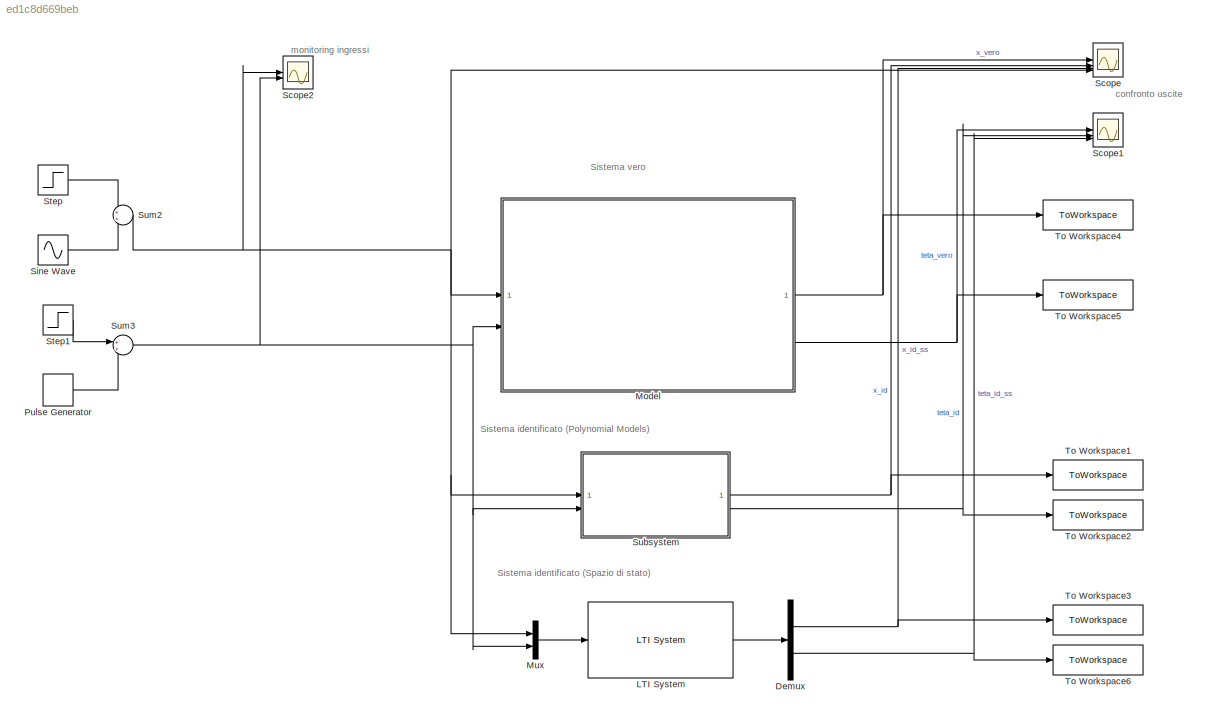
MODEL slx_ed1c8d669beb
KIND model
CONFIG AbsTol = auto
CONFIG EnableMultiTasking = off
CONFIG FixedStep = auto
CONFIG MaxStep = auto
CONFIG MinStep = auto
CONFIG RelTol = 1e-3
CONFIG SampleTimeConstraint = Unconstrained
CONFIG SolverName = VariableStepAuto
CONFIG StartTime = 0.0
CONFIG StopTime = 20
BLOCK [Demux] Demux
  Outputs = 2
BLOCK [Reference] LTI System  REF=cstblocks/LTI System
  SourceBlock = cstblocks/LTI System
  SourceType = LTI Block
BLOCK [ModelReference] Model
  ModelNameDialog = sistema_con_reazione_stato.slx
  ModelReferenceVersion = 9.56
BLOCK [Mux] Mux
  DisplayOption = bar
  Inputs = 2
BLOCK [DiscretePulseGenerator] Pulse Generator
  Amplitude = imp_amp_d
  Period = 1000
  PulseType = Time based
  PulseWidth = imp_dur_d / 1000 * 100
BLOCK [Scope] Scope
  ActiveDisplayYMaximum = 0.30834081141002062
  ActiveDisplayYMinimum = -2.6617021041719275
  Floating = off
  GraphicalSettings = {"Style":{"BackgroundColor":[0.12941176470588237,0.12941176470588237,0.12941176470588237],"AxesColor":[0.07058823529411765,0.07058823529411765,0.07058823529411765],"LabelsColor":[0.8509803921568627,0.8509803921568627,0.8509803921568627],"PreserveColors":false,"Visible":[true,true,false,true,true,true,true],"LineStyle":["-","-","-","-","-","-","-"],"LineWidth":[1.5,1.5,1.5,1.5,1.5,1.5,1.5],"BarWidt...<+2620ch>
  MultipleDisplayCache = [{"MaxYLimMag":2.6617021041719275,"MaxYLimReal":0.30834081141002062,"MinYLimMag":0,"MinYLimReal":-2.6617021041719275,"PlotAsMagnitudePhase":false,"ShowGrid":true,"ShowLegend":true,"Title":"%<SignalLabel>","YLabel":""}]
  NumInputPorts = 4
  ScopeFrameLocation = window
  ShowLegend = on
  Visible = on
  WasSavedAsWebScope = on
  WindowPosition = [67.000000,1.000000,1300.000000,699.000000,]
BLOCK [Scope] Scope1
  ActiveDisplayYMaximum = 0.14983849326569948
  ActiveDisplayYMinimum = -0.32518065393489937
  DataLoggingVariableName = ScopeData1
  Floating = off
  GraphicalSettings = {"Style":{"BackgroundColor":[0.12941176470588237,0.12941176470588237,0.12941176470588237],"AxesColor":[0.07058823529411765,0.07058823529411765,0.07058823529411765],"LabelsColor":[0.8509803921568627,0.8509803921568627,0.8509803921568627],"PreserveColors":false,"Visible":[true,true,true,true,true,true,true],"LineStyle":["-","-","-","-","-","-","-"],"LineWidth":[1.5,1.5,1.5,1.5,1.5,1.5,1.5],"BarWidth...<+2597ch>
  MultipleDisplayCache = [{"MaxYLimMag":0.32518065393489937,"MaxYLimReal":0.14983849326569948,"MinYLimMag":0,"MinYLimReal":-0.32518065393489937,"PlotAsMagnitudePhase":false,"ShowGrid":true,"ShowLegend":false,"Title":"%<SignalLabel>","YLabel":""}]
  NumInputPorts = 3
  ScopeFrameLocation = window
  WasSavedAsWebScope = on
  WindowPosition = [403.000000,285.000000,560.000000,420.000000,]
BLOCK [Scope] Scope2
  ActiveDisplayYMaximum = 1
  ActiveDisplayYMinimum = -1
  DataLoggingVariableName = ScopeData2
  Floating = off
  GraphicalSettings = {"Style":{"BackgroundColor":[0.12941176470588237,0.12941176470588237,0.12941176470588237],"AxesColor":[0.07058823529411765,0.07058823529411765,0.07058823529411765],"LabelsColor":[0.8509803921568627,0.8509803921568627,0.8509803921568627],"PreserveColors":false,"Visible":[true,true],"LineStyle":["-","-"],"LineWidth":[1.5,1.5],"BarWidth":[0.9,0.9],"LineColor":["auto","auto"],"LineFaceAlpha":[1,1],"Li...<+2315ch>
  LayoutDimensionsString = [2, 1]
  MultipleDisplayCache = [{"MaxYLimMag":1,"MaxYLimReal":1,"MinYLimMag":0,"MinYLimReal":-1,"PlotAsMagnitudePhase":false,"ShowGrid":true,"ShowLegend":false,"Title":"%<SignalLabel>","YLabel":""},{"MaxYLimMag":3.375,"MaxYLimReal":3.375,"MinYLimMag":0,"MinYLimReal":-0.37499999999999989,"PlotAsMagnitudePhase":false,"ShowGrid":true,"ShowLegend":false,"Title":"%<SignalLabel>","YLabel":""}]
  NumInputPorts = 2
  ScopeFrameLocation = window
  WasSavedAsWebScope = on
  WindowPosition = [403.000000,248.000000,560.000000,420.000000,]
BLOCK [Sin] Sine Wave
  Amplitude = sin_amp_u
  Frequency = sin_frq_u
  SampleTime = 0
BLOCK [Step] Step
  After = stp_amp_u
  SampleTime = 0
  Time = stp_tim_u
BLOCK [Step] Step1
  After = stp_amp_d
  SampleTime = 0
  Time = stp_tim_d
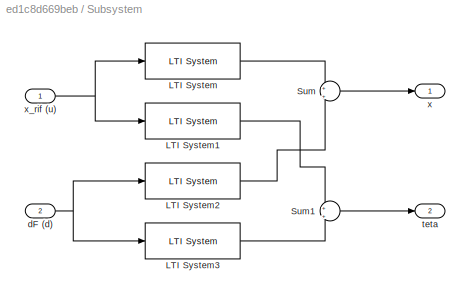
BLOCK [SubSystem] Subsystem
BLOCK [Reference] Subsystem/LTI System  REF=cstblocks/LTI System
  SourceBlock = cstblocks/LTI System
  SourceType = LTI Block
BLOCK [Reference] Subsystem/LTI System1  REF=cstblocks/LTI System
  SourceBlock = cstblocks/LTI System
  SourceType = LTI Block
BLOCK [Reference] Subsystem/LTI System2  REF=cstblocks/LTI System
  SourceBlock = cstblocks/LTI System
  SourceType = LTI Block
BLOCK [Reference] Subsystem/LTI System3  REF=cstblocks/LTI System
  SourceBlock = cstblocks/LTI System
  SourceType = LTI Block
BLOCK [Sum] Subsystem/Sum
  Inputs = +|+
BLOCK [Sum] Subsystem/Sum1
  Inputs = +|+
BLOCK [Inport] Subsystem/dF (d)
  Port = 2
BLOCK [Outport] Subsystem/teta
  Port = 2
BLOCK [Outport] Subsystem/x
BLOCK [Inport] Subsystem/x_rif (u)
BLOCK [Sum] Sum2
BLOCK [Sum] Sum3
BLOCK [ToWorkspace] To Workspace1
  FixptAsFi = on
  MaxDataPoints = inf
  SampleTime = -1
  SaveFormat = Timeseries
  VariableName = x_id_sim
BLOCK [ToWorkspace] To Workspace2
  FixptAsFi = on
  MaxDataPoints = inf
  SampleTime = -1
  SaveFormat = Timeseries
  VariableName = teta_id_sim
BLOCK [ToWorkspace] To Workspace3
  FixptAsFi = on
  MaxDataPoints = inf
  SampleTime = -1
  SaveFormat = Timeseries
  VariableName = ss_x_id_sim
BLOCK [ToWorkspace] To Workspace4
  FixptAsFi = on
  MaxDataPoints = inf
  SampleTime = -1
  SaveFormat = Timeseries
  VariableName = x_vero_sim
BLOCK [ToWorkspace] To Workspace5
  FixptAsFi = on
  MaxDataPoints = inf
  SampleTime = -1
  SaveFormat = Timeseries
  VariableName = teta_vero_sim
BLOCK [ToWorkspace] To Workspace6
  FixptAsFi = on
  MaxDataPoints = inf
  SampleTime = -1
  SaveFormat = Timeseries
  VariableName = ss_teta_id_sim
ANNOTATION (root): Sistema identificato (Polynomial Models)
ANNOTATION (root): Sistema identificato (Spazio di stato)
ANNOTATION (root): Sistema vero
ANNOTATION (root): confronto uscite
ANNOTATION (root): monitoring ingressi
NET Demux:1 -> Scope:3, To Workspace3:1
NET Demux:2 -> Scope1:3, To Workspace6:1
LINE LTI System:1 -> Demux:1
NET Model:1 -> Scope:1, To Workspace4:1
NET Model:3 -> Scope1:1, To Workspace5:1
LINE Mux:1 -> LTI System:1
LINE Pulse Generator:1 -> Sum3:2
LINE Sine Wave:1 -> Sum2:2
LINE Step1:1 -> Sum3:1
LINE Step:1 -> Sum2:1
LINE Subsystem/LTI System1:1 -> Subsystem/Sum1:1
LINE Subsystem/LTI System2:1 -> Subsystem/Sum:2
LINE Subsystem/LTI System3:1 -> Subsystem/Sum1:2
LINE Subsystem/LTI System:1 -> Subsystem/Sum:1
LINE Subsystem/Sum1:1 -> Subsystem/teta:1
LINE Subsystem/Sum:1 -> Subsystem/x:1
NET Subsystem/dF (d):1 -> Subsystem/LTI System2:1, Subsystem/LTI System3:1
NET Subsystem/x_rif (u):1 -> Subsystem/LTI System1:1, Subsystem/LTI System:1
NET Subsystem:1 -> Scope:2, To Workspace1:1
NET Subsystem:2 -> Scope1:2, To Workspace2:1
NET Sum2:1 -> Model:1, Mux:1, Scope2:1, Scope:4, Subsystem:1
NET Sum3:1 -> Model:2, Mux:2, Scope2:2, Subsystem:2
note: NET lines group one-source signal fan-out (src -> all destinations, sorted); 1:1 wires keep LINE
